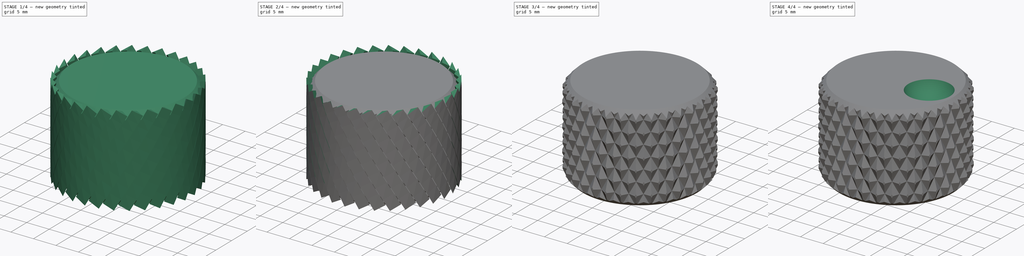
[diagram: build sequence overview — one tinted view per stage of 4, left to right]
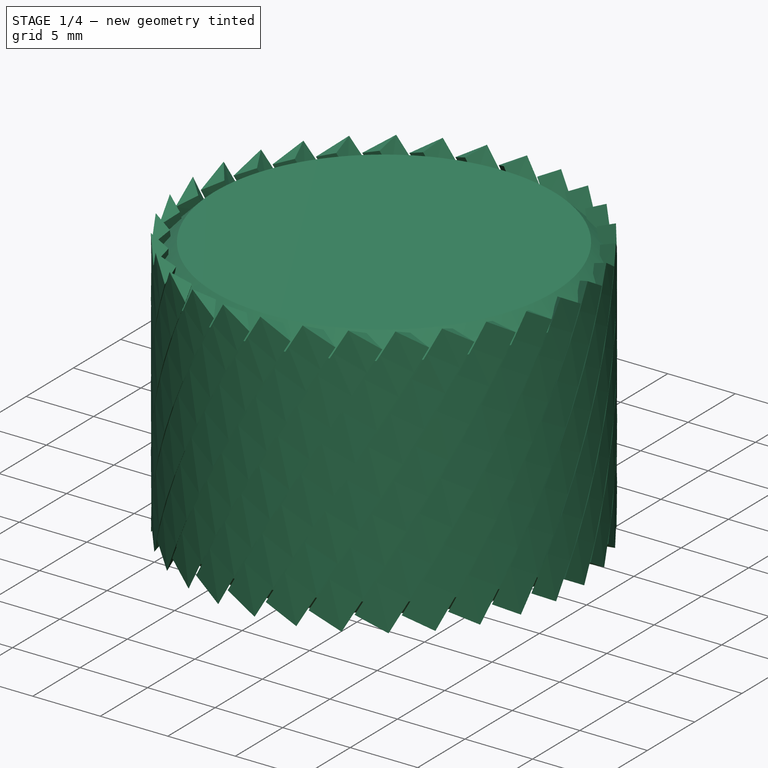
[diagram: stage 1 of 4 — iso view after this stage's code; geometry added in this stage tinted green]
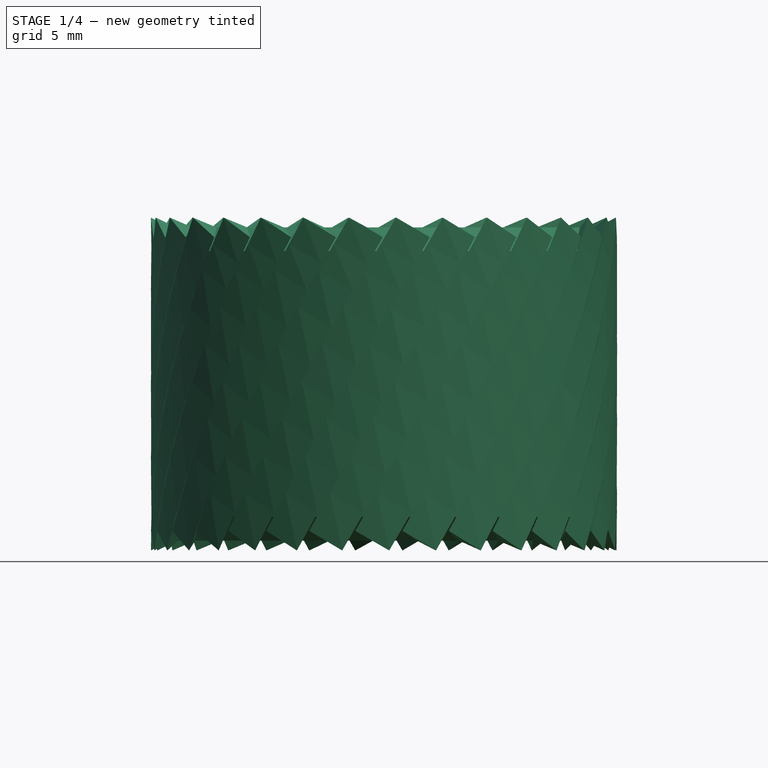
[diagram: stage 1 of 4 — front view after this stage's code; geometry added in this stage tinted green]
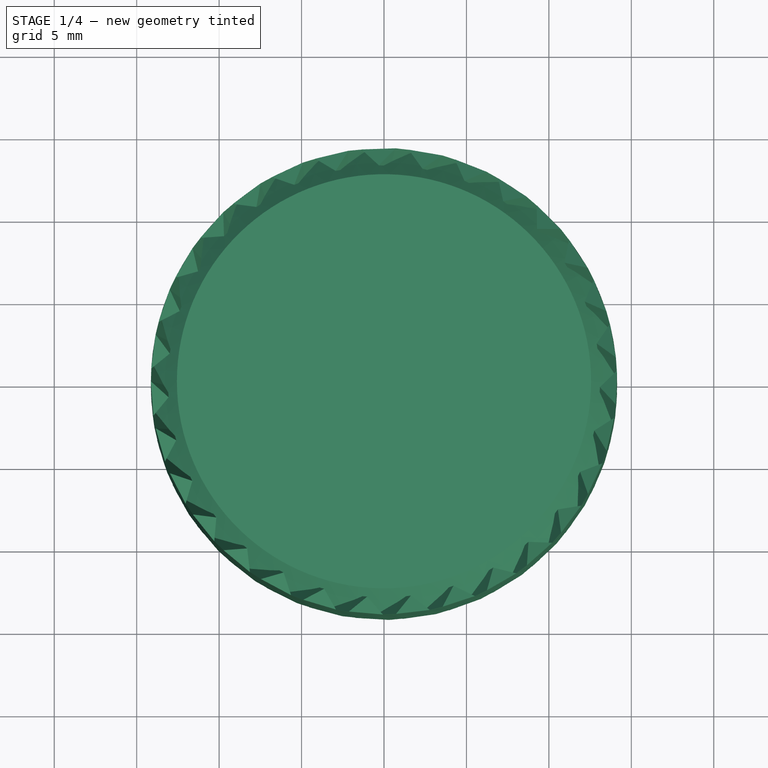
[diagram: stage 1 of 4 — top view after this stage's code; geometry added in this stage tinted green]
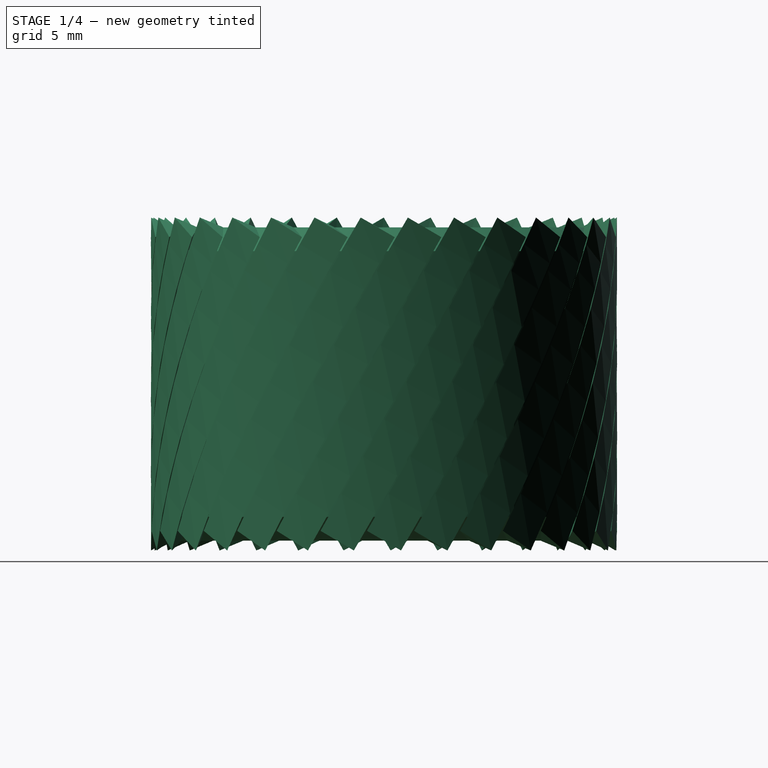
[diagram: stage 1 of 4 — right view after this stage's code; geometry added in this stage tinted green]
FCSTD DOCUMENT  (FreeCAD 0.19R24291 (Git))
Label: EncoderKnob_V2
License: All rights reserved
LicenseURL: http://en.wikipedia.org/wiki/All_rights_reserved
objects: Sketcher::SketchObject×5, Part::Cut×3, PartDesign::Pocket×3, PartDesign::Body×2, Part::Helix×2, Part::Sweep×2, Part::FeaturePython×2, Spreadsheet::Sheet×1, PartDesign::Pad×1, PartDesign::Chamfer×1, PartDesign::FeatureBase×1, Part::Sphere×1, PartDesign::ShapeBinder×1
note: 29 computed .brp shape members not serialized (recipe doc carries the construction recipe); baked Part::Feature solids carry a one-line shape summary decoded from their .brp

FEATURE [Spreadsheet::Sheet] Spreadsheet
  cells = A1(out_dia)=28; B1=Out diametr; A2(height)=19; B2=Cylinder height; A3(engrav_depth)=0.9; B3=Engraving depth; A4(helix_pitch)==sin(A5) / cos(A5) * 3.1415926 * out_dia; B4=(calculated) Helix pitch; A5(engr_angle)=60; B5=Engraving angle; A6(engrav_num)==out_dia * 3.1415926 / (tan(100 / 2) * engrav_depth * 2) * 0.75; B6=(calculated) number of engravs on round
FEATURE [Sketcher::SketchObject] Sketch
  FullyConstrained = true
  MapMode = 5
  Support = -> [XY_Plane]
  expr: Constraints[1] = Spreadsheet.out_dia / 2
  sketch-geometry (1):
    g0: Circle CenterX=0 CenterY=0 CenterZ=0 NormalX=0 NormalY=0 NormalZ=1 AngleXU=0 Radius=14
  constraints (2):
    c: Coincident(g0,g-1)
    c: Radius(g0) = 14
FEATURE [PartDesign::Pad] Pad
  Direction = (1,1,1)
  Length = 19
  Length2 = 100
  Profile = -> Sketch
  Type = 0
  expr: Length = Spreadsheet.height
FEATURE [PartDesign::Chamfer] Chamfer
  Angle = 45
  Base = -> Pad [Edge3,Edge2]
  BaseFeature = -> Pad
  ChamferType = 0
  FlipDirection = false
  Size = 1.44
  Size2 = 1
  SupportTransform = false
  expr: Size = Spreadsheet.engrav_depth * 1.6
FEATURE [PartDesign::Body] Body
  Group = -> [Sketch,Pad,Chamfer]
  Origin = -> Origin
  Tip = -> Chamfer
FEATURE [Part::Helix] Helix  label="HelixR"
  Angle = 0
  AttacherType = Attacher::AttachEngine3D
  Height = 19
  LocalCoord = 0
  Pitch = 152.359
  Radius = 14
  Style = 1
  expr: Radius = Spreadsheet.out_dia / 2
  expr: Pitch = Spreadsheet.helix_pitch
  expr: Height = Spreadsheet.height
FEATURE [Part::Helix] Helix001  label="HelixL"
  Angle = 0
  AttacherType = Attacher::AttachEngine3D
  Height = 19
  LocalCoord = 1
  Pitch = 152.359
  Radius = 14
  Style = 1
  expr: Radius = Spreadsheet.out_dia / 2
  expr: Height = Spreadsheet.height
  expr: Pitch = Spreadsheet.helix_pitch
FEATURE [Sketcher::SketchObject] Sketch002
  AttachmentOffset = pos=(0,0,0) rot=(1,0,0;0.523599rad)
  FullyConstrained = true
  MapMode = 5
  Placement = pos=(0,0,0) rot=(1,0,0;0.523599rad)
  Support = -> [XY_Plane]
  expr: .AttachmentOffset.Rotation.Angle = 90 - Spreadsheet.engr_angle
  expr: Constraints[7] = Spreadsheet.out_dia / 2 + 0.1
  expr: Constraints[6] = Spreadsheet.out_dia / 2 - Spreadsheet.engrav_depth
  sketch-geometry (3):
    g0: LineSegment StartX=13.1 StartY=0 StartZ=0 EndX=14.1 EndY=1.19175 EndZ=0
    g1: LineSegment StartX=14.1 StartY=1.19175 StartZ=0 EndX=14.1 EndY=-1.19175 EndZ=0
    g2: LineSegment StartX=14.1 StartY=-1.19175 StartZ=0 EndX=13.1 EndY=0 EndZ=0
  constraints (8):
    c: PointOnObject(g0,g-1)
    c: Coincident(g0,g1)
    c: Coincident(g1,g2)
    c: Symmetric(g0,g1,g-1)
    c: Coincident(g0,g2)
    c: Angle(g2,g0) = 1.74533
    c: DistanceX(g-2,g0) = 13.1
    c: DistanceX(g-2,g1) = 14.1
FEATURE [Sketcher::SketchObject] Sketch001
  AttachmentOffset = pos=(0,0,0) rot=(1,0,0;-0.523599rad)
  FullyConstrained = true
  MapMode = 5
  Placement = pos=(0,0,0) rot=(1,0,0;5.75959rad)
  Support = -> [XY_Plane]
  expr: Constraints[6] = Spreadsheet.out_dia / 2 - Spreadsheet.engrav_depth
  expr: Constraints[7] = Spreadsheet.out_dia / 2 + 0.1
  expr: .AttachmentOffset.Rotation.Angle = -1 * (90 - Spreadsheet.engr_angle)
  sketch-geometry (3):
    g0: LineSegment StartX=13.1 StartY=0 StartZ=0 EndX=14.1 EndY=1.19175 EndZ=0
    g1: LineSegment StartX=14.1 StartY=1.19175 StartZ=0 EndX=14.1 EndY=-1.19175 EndZ=0
    g2: LineSegment StartX=14.1 StartY=-1.19175 StartZ=0 EndX=13.1 EndY=0 EndZ=0
  constraints (8):
    c: PointOnObject(g0,g-1)
    c: Coincident(g0,g1)
    c: Coincident(g1,g2)
    c: Symmetric(g0,g1,g-1)
    c: Coincident(g0,g2)
    c: Angle(g2,g0) = 1.74533
    c: DistanceX(g-2,g0) = 13.1
    c: DistanceX(g-2,g1) = 14.1
FEATURE [Part::Sweep] Sweep  label="SweepR"
  Frenet = true
  Sections = -> [Sketch001]
  Solid = true
  Spine = -> Helix
  Transition = 1
FEATURE [Part::FeaturePython] Array  label="ArrayR"  # Draft array (typed FeaturePython)
  Angle = 360
  ArrayType = 1
  Axis = (0,0,1)
  Base = -> Sweep
  Center = (0,0,0)
  Count = 31
  ExpandArray = false
  Fuse = true
  IntervalAxis = (0,0,0)
  IntervalX = (50,0,0)
  IntervalY = (0,50,0)
  IntervalZ = (0,0,50)
  NumberCircles = 3
  NumberPolar = 31
  NumberX = 2
  NumberY = 2
  NumberZ = 1
  PlacementList = 31 placements: [(0,0,0),(0,0,0),(0,0,0),(0,0,0),(0,0,0),(0,0,0),(0,0,0),(0,0,0),(0,0,0),(0,0,0),(0,0,0),(0,0,0),(0,0,0),(0,0,0),(0,0,0),(0,0,0),(0,0,0),(0,0,0),(0,0,0),(0,0,0),(0,0,0),(0,0,0),(0,0,0),(0,0,0),(0,0,0),(0,0,0),(0,0,0),(0,0,0),(0,0,0),(0,0,0),(0,0,0)]
  RadialDistance = 50
  ScaleList = (31) [(1,1,1),(1,1,1),(1,1,1),(1,1,1),(1,1,1),(1,1,1),(1,1,1),(1,1,1),(1,1,1),(1,1,1),(1,1,1),(1,1,1),(1,1,1),(1,1,1),(1,1,1),(1,1,1),(1,1,1),(1,1,1),+13 more]
  Symmetry = 1
  TangentialDistance = 25
  expr: NumberPolar = Spreadsheet.engrav_num
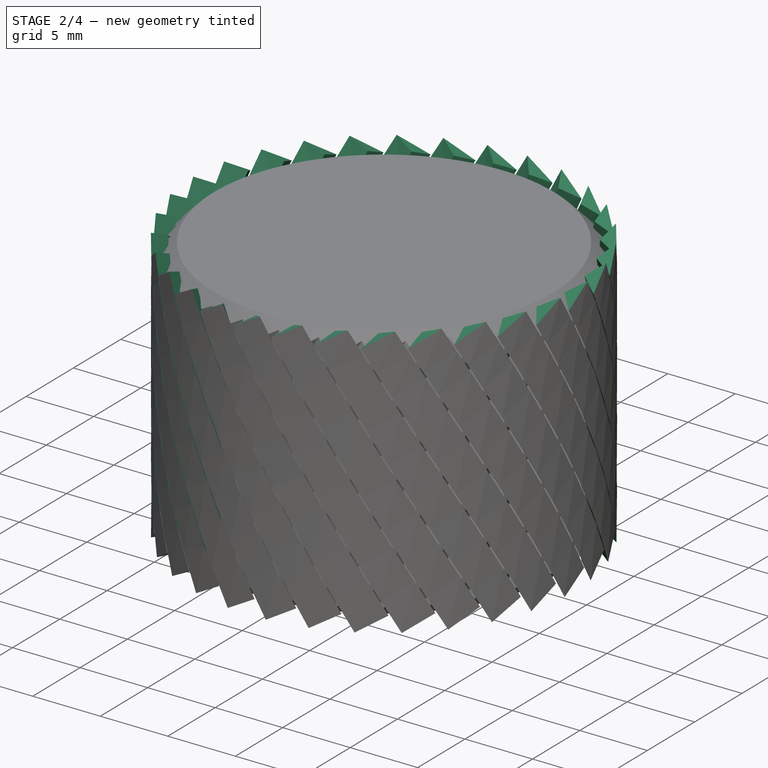
[diagram: stage 2 of 4 — iso view after this stage's code; geometry added in this stage tinted green]
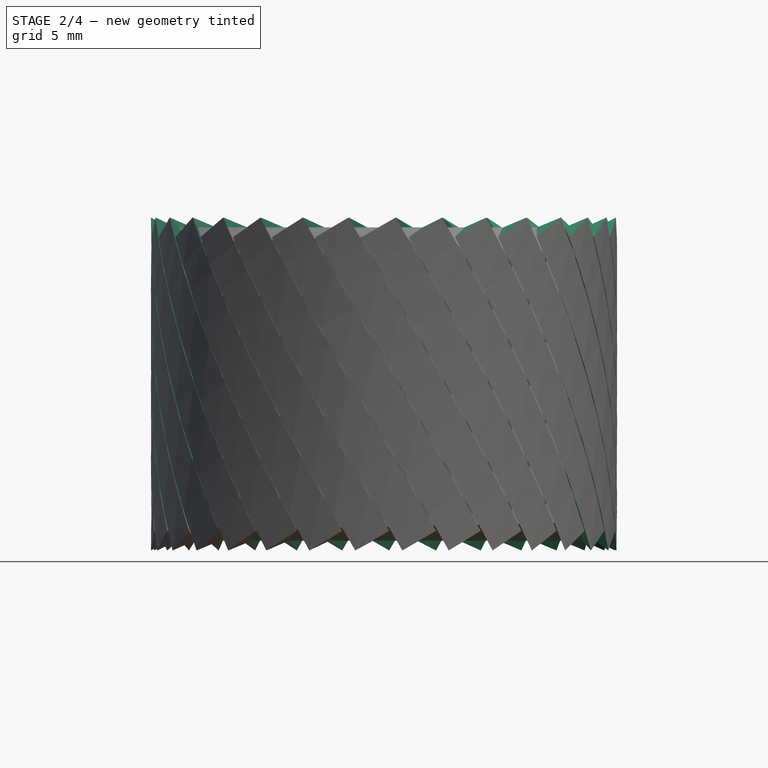
[diagram: stage 2 of 4 — front view after this stage's code; geometry added in this stage tinted green]
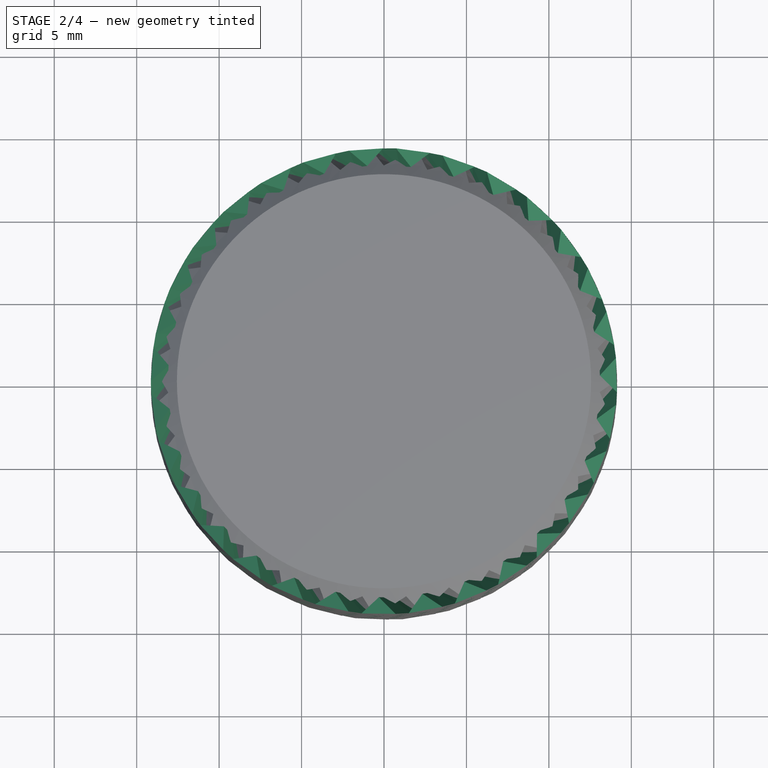
[diagram: stage 2 of 4 — top view after this stage's code; geometry added in this stage tinted green]
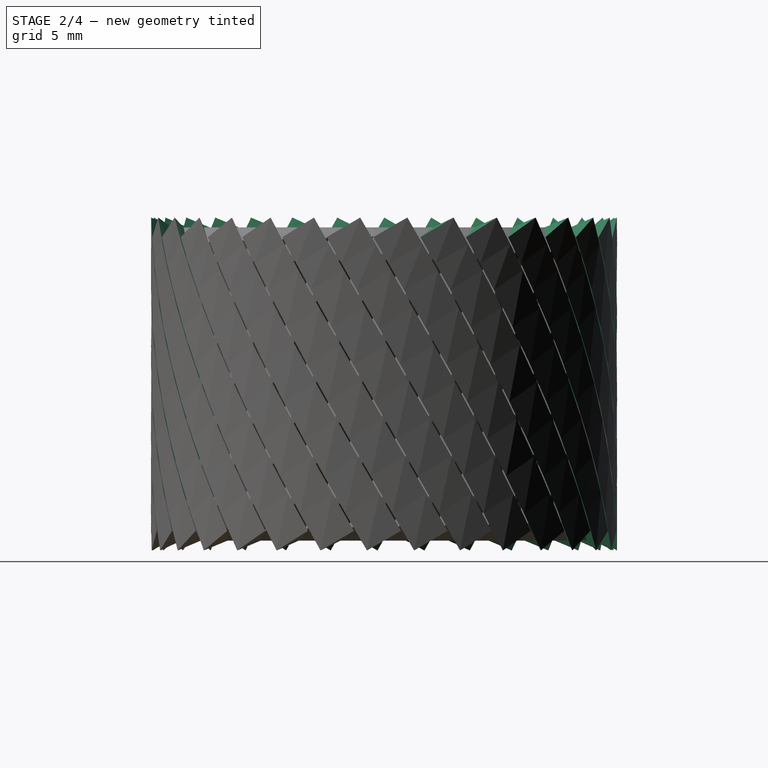
[diagram: stage 2 of 4 — right view after this stage's code; geometry added in this stage tinted green]
FEATURE [Part::Sweep] Sweep001  label="SweepL"
  Frenet = true
  Sections = -> [Sketch002]
  Solid = true
  Spine = -> Helix001
  Transition = 1
FEATURE [Part::FeaturePython] Array001  label="ArrayL"  # Draft array (typed FeaturePython)
  Angle = 360
  ArrayType = 1
  Axis = (0,0,1)
  Base = -> Sweep001
  Center = (0,0,0)
  Count = 31
  ExpandArray = false
  Fuse = true
  IntervalAxis = (0,0,0)
  IntervalX = (50,0,0)
  IntervalY = (0,50,0)
  IntervalZ = (0,0,50)
  NumberCircles = 3
  NumberPolar = 31
  NumberX = 2
  NumberY = 2
  NumberZ = 1
  PlacementList = 31 placements: [(0,0,0),(0,0,0),(0,0,0),(0,0,0),(0,0,0),(0,0,0),(0,0,0),(0,0,0),(0,0,0),(0,0,0),(0,0,0),(0,0,0),(0,0,0),(0,0,0),(0,0,0),(0,0,0),(0,0,0),(0,0,0),(0,0,0),(0,0,0),(0,0,0),(0,0,0),(0,0,0),(0,0,0),(0,0,0),(0,0,0),(0,0,0),(0,0,0),(0,0,0),(0,0,0),(0,0,0)]
  RadialDistance = 50
  ScaleList = (31) [(1,1,1),(1,1,1),(1,1,1),(1,1,1),(1,1,1),(1,1,1),(1,1,1),(1,1,1),(1,1,1),(1,1,1),(1,1,1),(1,1,1),(1,1,1),(1,1,1),(1,1,1),(1,1,1),(1,1,1),(1,1,1),+13 more]
  Symmetry = 1
  TangentialDistance = 25
  expr: NumberPolar = Spreadsheet.engrav_num
FEATURE [Part::Cut] Cut  label="CutR"
  Base = -> Body
  Tool = -> Array
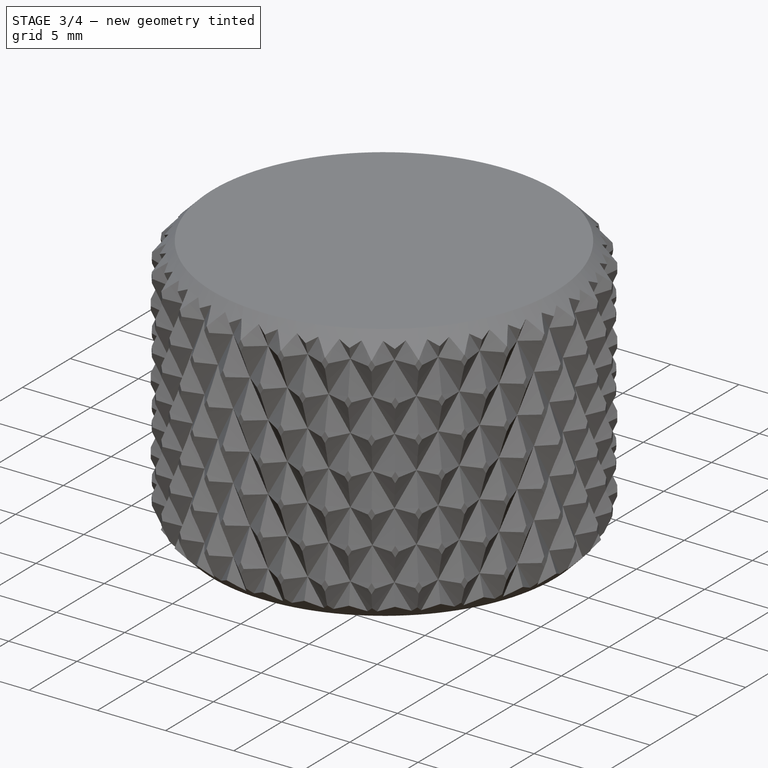
[diagram: stage 3 of 4 — iso view after this stage's code; geometry added in this stage tinted green]
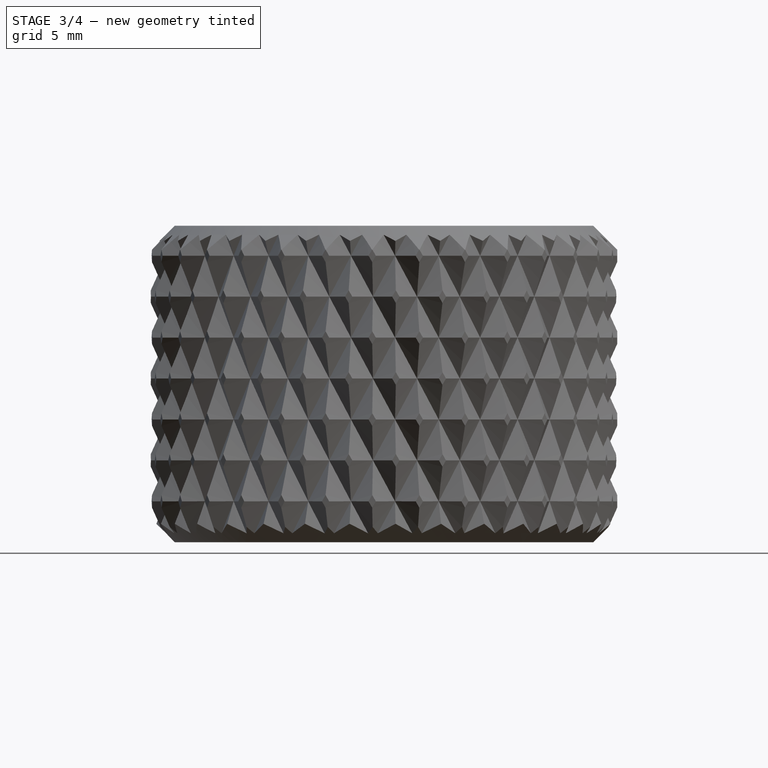
[diagram: stage 3 of 4 — front view after this stage's code; geometry added in this stage tinted green]
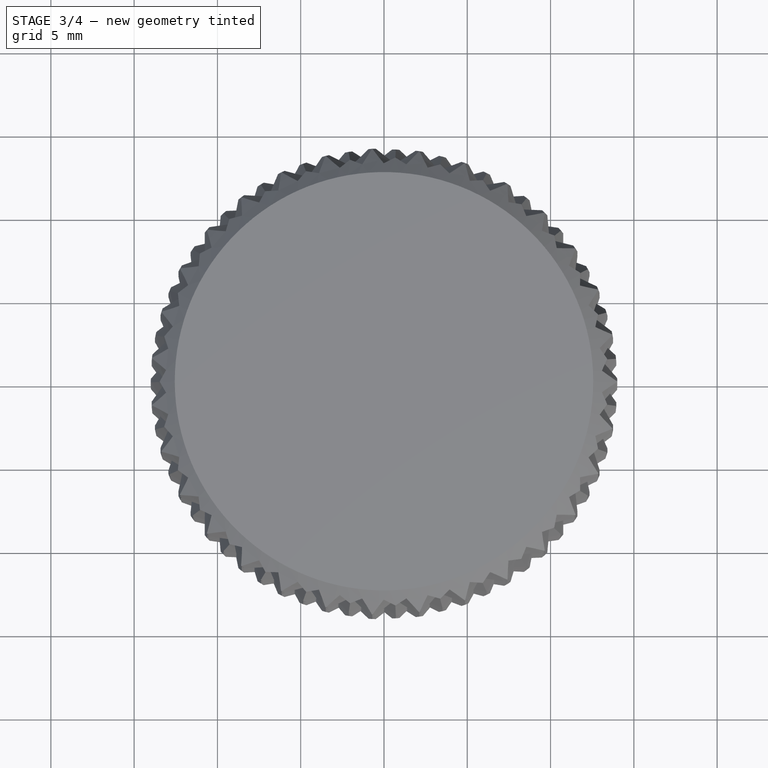
[diagram: stage 3 of 4 — top view after this stage's code; geometry added in this stage tinted green]
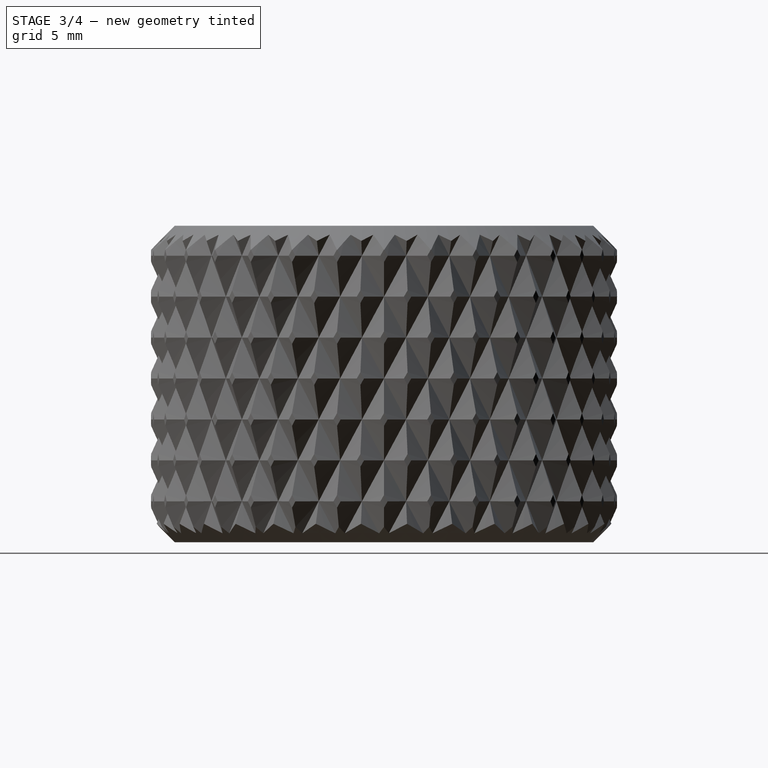
[diagram: stage 3 of 4 — right view after this stage's code; geometry added in this stage tinted green]
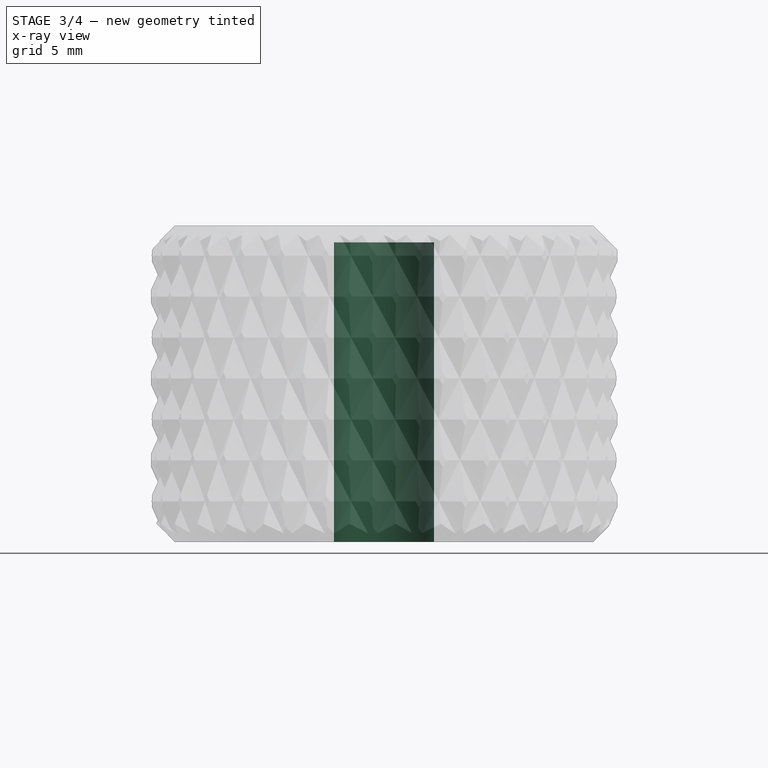
[diagram: stage 3 of 4 — x-ray composite at the front view; earlier geometry ghosted, this stage's added geometry solid]
FEATURE [Part::Cut] Cut001  label="CutRL"
  Base = -> Cut
  Tool = -> Array001
FEATURE [PartDesign::FeatureBase] BaseFeature
  BaseFeature = -> Cut001
FEATURE [Sketcher::SketchObject] Sketch003
  FullyConstrained = true
  MapMode = 5
  Placement = pos=(0,0,0) rot=(1,0,0;3.14159rad)
  Support = -> [BaseFeature]
  sketch-geometry (1):
    g0: Circle CenterX=0 CenterY=0 CenterZ=0 NormalX=0 NormalY=0 NormalZ=1 AngleXU=0 Radius=3
  constraints (2):
    c: Coincident(g0,g-1)
    c: Diameter(g0) = 6
FEATURE [PartDesign::Pocket] Pocket
  BaseFeature = -> BaseFeature
  Length = 18
  Length2 = 100
  Profile = -> Sketch003
  Type = 0
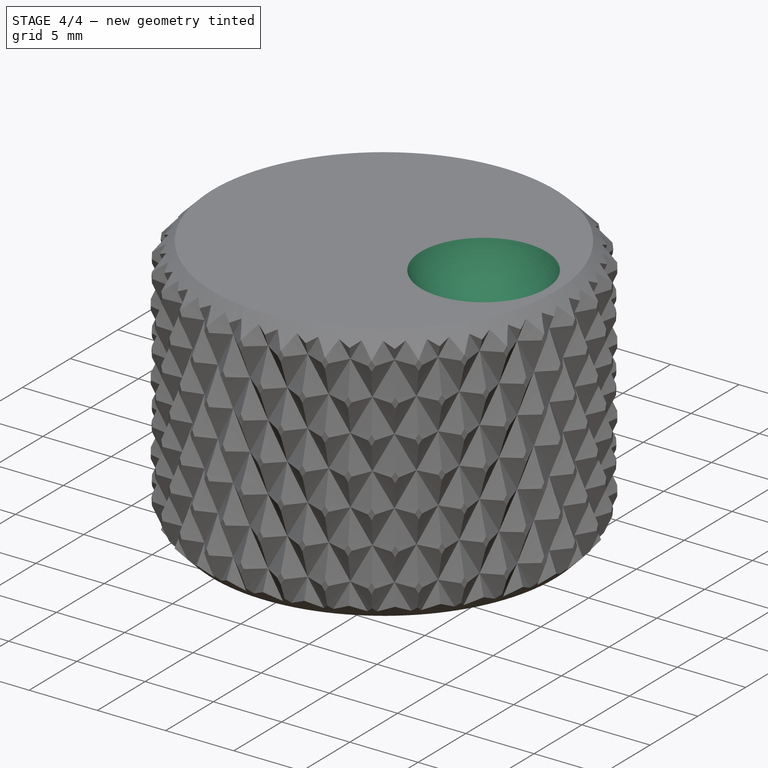
[diagram: stage 4 of 4 — iso view after this stage's code; geometry added in this stage tinted green]
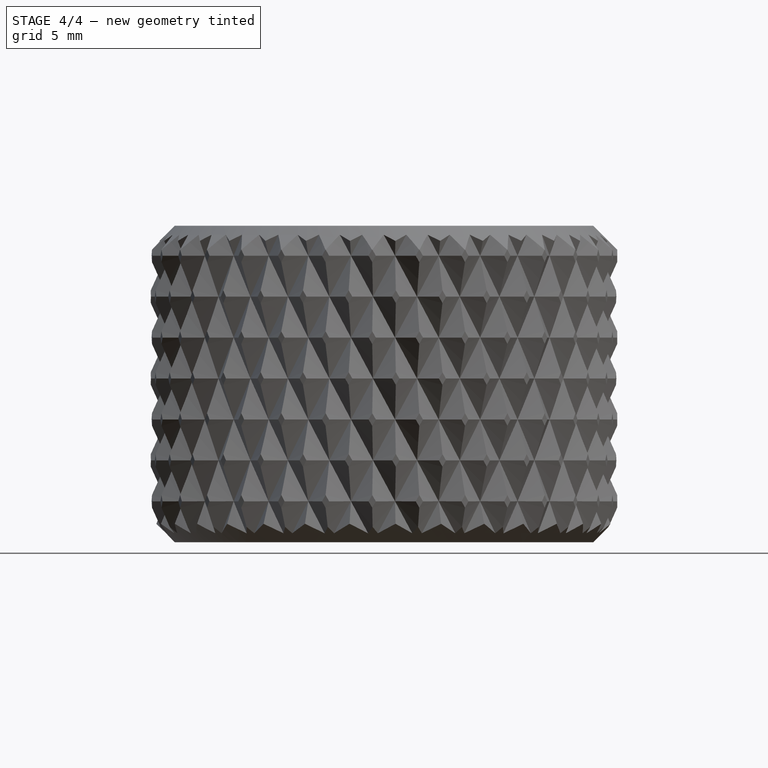
[diagram: stage 4 of 4 — front view after this stage's code; geometry added in this stage tinted green]
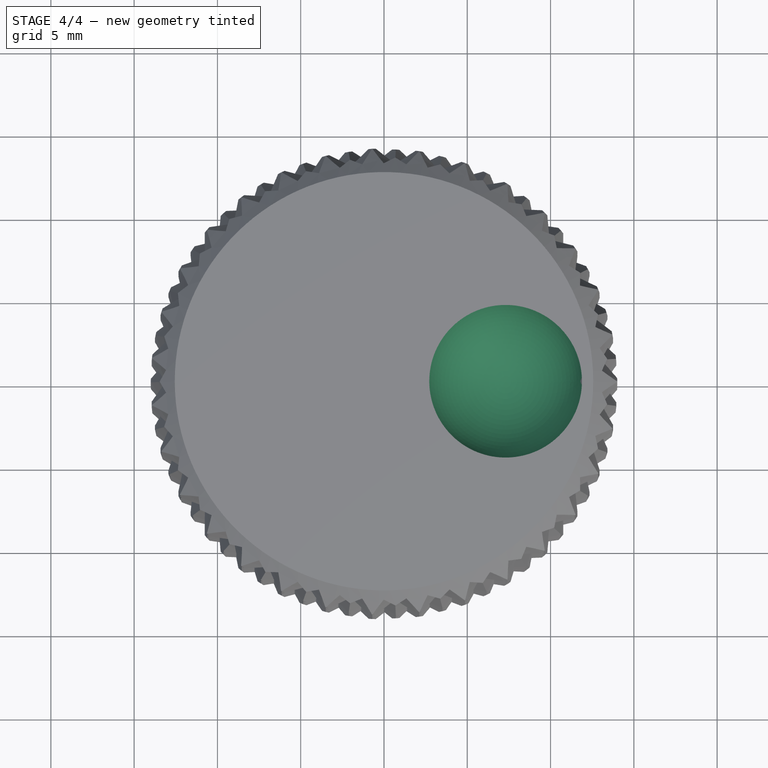
[diagram: stage 4 of 4 — top view after this stage's code; geometry added in this stage tinted green]
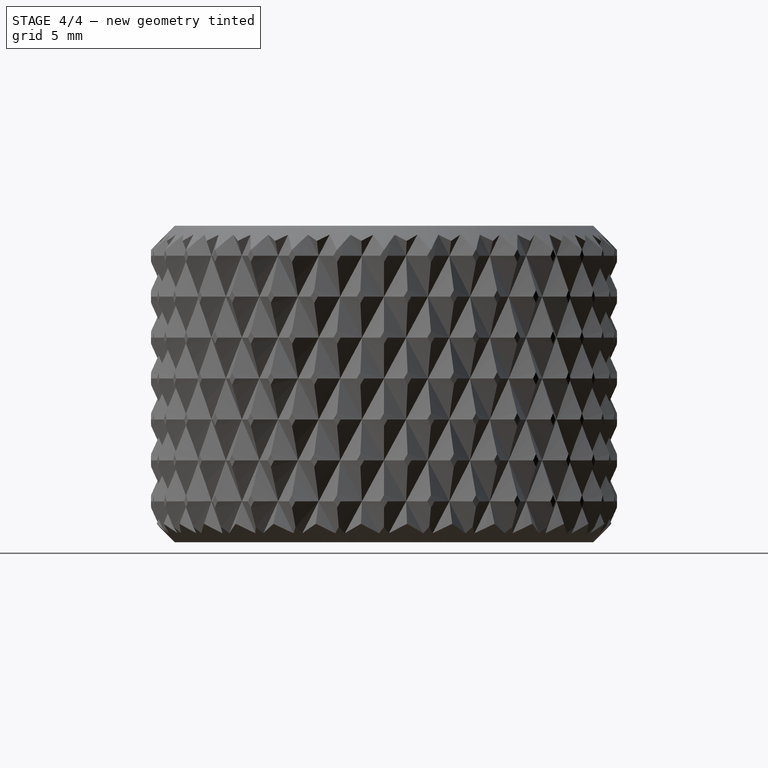
[diagram: stage 4 of 4 — right view after this stage's code; geometry added in this stage tinted green]
FEATURE [PartDesign::Pocket] Pocket001
  BaseFeature = -> Pocket
  Length = 10
  Length2 = 100
  Profile = -> Sketch003
  Type = 0
FEATURE [Part::Sphere] Sphere
  Angle1 = -90
  Angle2 = 90
  Angle3 = 360
  AttacherType = Attacher::AttachEngine3D
  Placement = pos=(7.3,0,21) rot=(0,0,1;0rad)
  Radius = 5
FEATURE [PartDesign::ShapeBinder] CopyCut002
  TraceSupport = false
FEATURE [Sketcher::SketchObject] Sketch004
  FullyConstrained = true
  MapMode = 5
  Placement = pos=(0,0,0) rot=(1,0,0;3.14159rad)
  Support = -> [CopyCut002]
  sketch-geometry (1):
    g0: Circle CenterX=0 CenterY=0 CenterZ=0 NormalX=0 NormalY=0 NormalZ=1 AngleXU=0 Radius=6
  constraints (2):
    c: Coincident(g0,g-1)
    c: Diameter(g0) = 12
FEATURE [PartDesign::Pocket] Pocket002
  BaseFeature = -> Pocket001
  Length = 6
  Length2 = 100
  Profile = -> Sketch004
  Type = 0
FEATURE [PartDesign::Body] Body001
  BaseFeature = -> Cut001
  Group = -> [BaseFeature,Sketch003,Pocket,Pocket001,CopyCut002,Sketch004,Pocket002]
  Origin = -> Origin001
  Tip = -> Pocket002
FEATURE [Part::Cut] Cut002
  Base = -> Pocket002
  Tool = -> Sphere
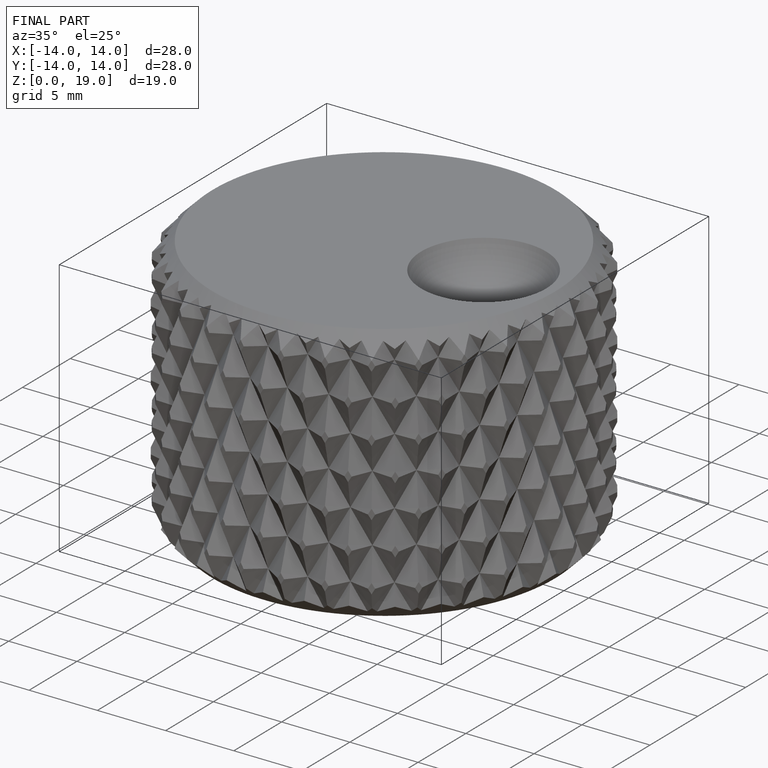
[diagram: finished part — iso view with bounding-box wireframe]
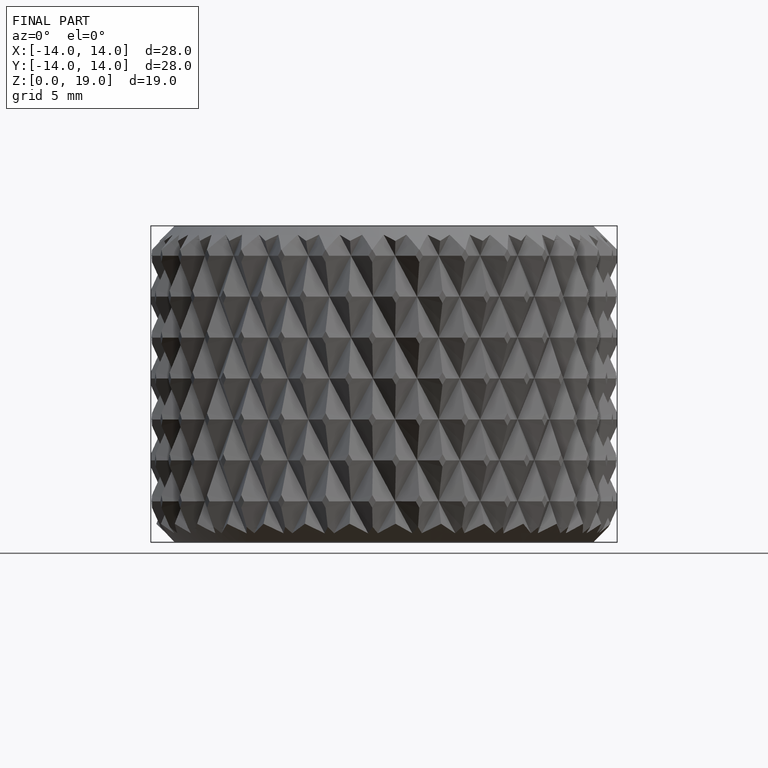
[diagram: finished part — front view with bounding-box wireframe]
